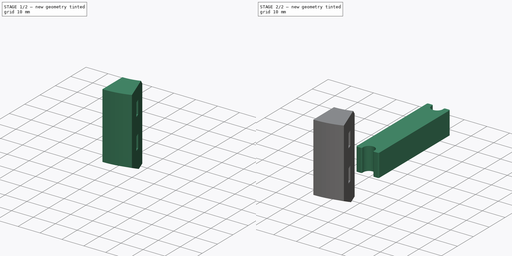
[diagram: build sequence overview — one tinted view per stage of 2, left to right]
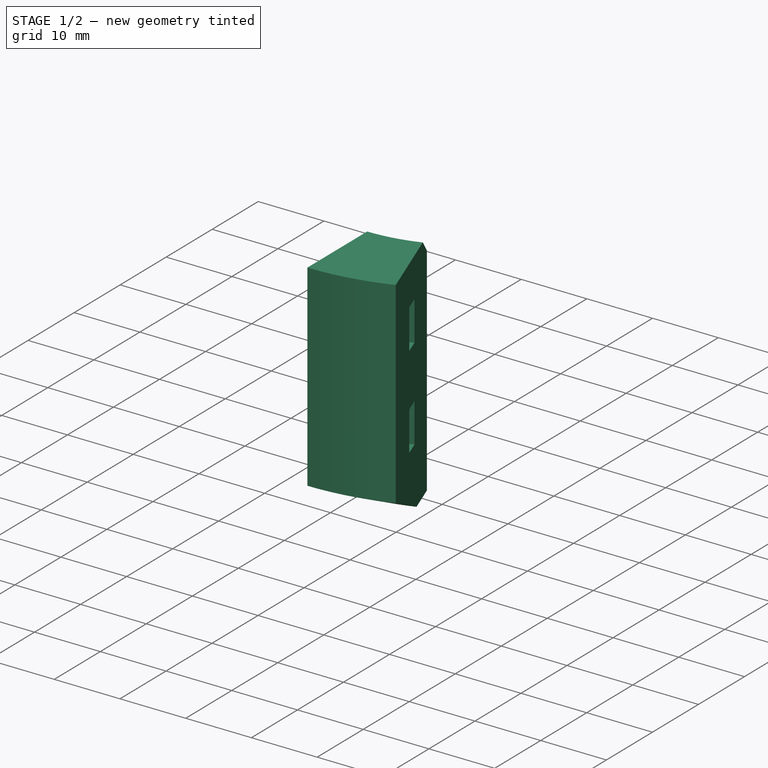
[diagram: stage 1 of 2 — iso view after this stage's code; geometry added in this stage tinted green]
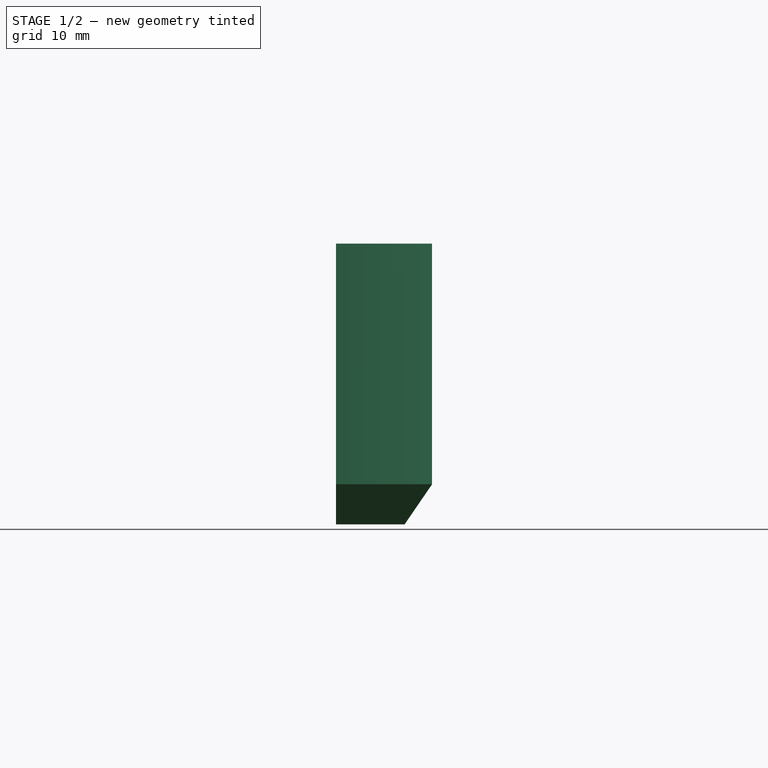
[diagram: stage 1 of 2 — front view after this stage's code; geometry added in this stage tinted green]
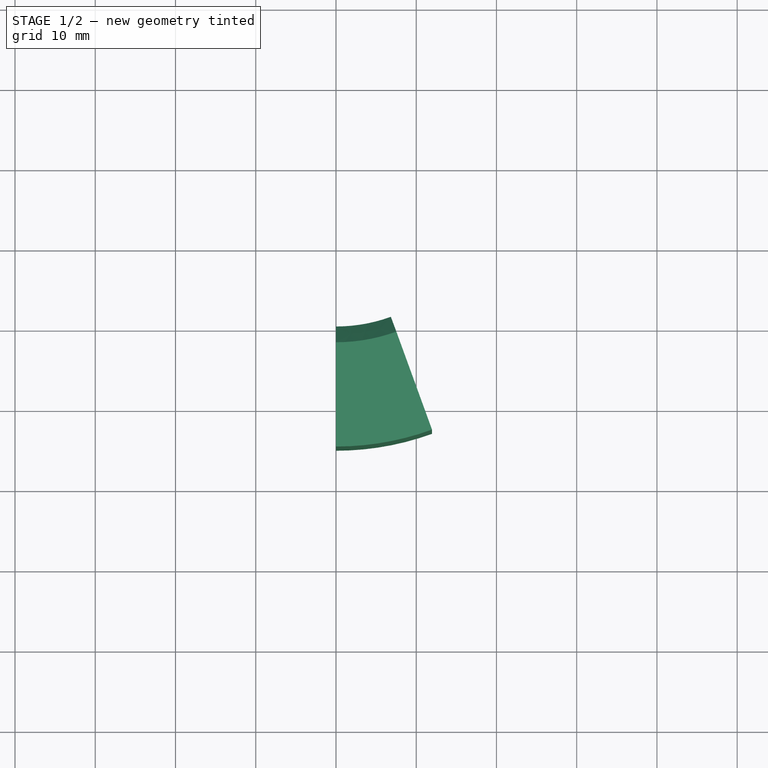
[diagram: stage 1 of 2 — top view after this stage's code; geometry added in this stage tinted green]
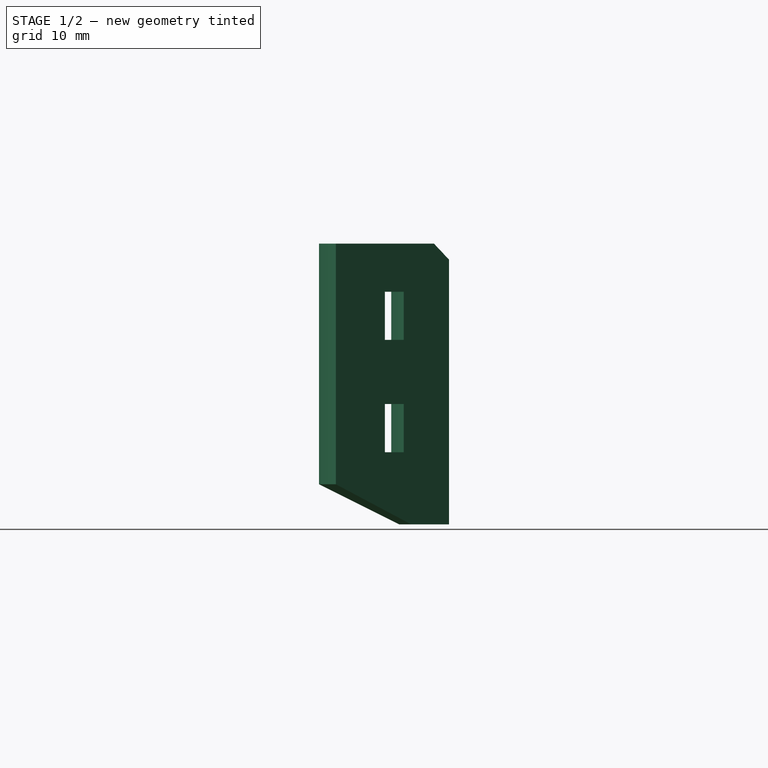
[diagram: stage 1 of 2 — right view after this stage's code; geometry added in this stage tinted green]
FCSTD DOCUMENT  (FreeCAD 0.21R33771 (Git))
Label: IkeaCabinetCarouselFix
License: All rights reserved
LicenseURL: https://en.wikipedia.org/wiki/All_rights_reserved
objects: Sketcher::SketchObject×4, PartDesign::Body×3, PartDesign::Pad×1, PartDesign::Fillet×1, PartDesign::AdditiveLoft×1, PartDesign::Revolution×1, PartDesign::Chamfer×1
note: 17 computed .brp shape members not serialized (recipe doc carries the construction recipe); baked Part::Feature solids carry a one-line shape summary decoded from their .brp

FEATURE [PartDesign::Body] Body
  Group = -> [Sketch,Pad,Fillet]
  Origin = -> Origin
  Tip = -> Fillet
FEATURE [Sketcher::SketchObject] Sketch001
  FullyConstrained = true
  MapMode = 5
  Support = -> [XY_Plane001]
  sketch-geometry (4):
    g0: Circle CenterX=0 CenterY=0 CenterZ=0 NormalX=0 NormalY=0 NormalZ=1 AngleXU=0 Radius=35
    g1: Circle CenterX=0 CenterY=0 CenterZ=0 NormalX=0 NormalY=0 NormalZ=1 AngleXU=0 Radius=20
    g2: GeomPoint X=0 Y=20 Z=0
    g3: GeomPoint X=0 Y=35 Z=0
  constraints (8):
    c: Coincident(g0,g-1)
    c: Coincident(g1,g0)
    c: PointOnObject(g2,g1)
    c: PointOnObject(g3,g0)
    c: PointOnObject(g3,g-2)
    c: PointOnObject(g2,g-2)
    c: Diameter(g0) = 70
    c: DistanceY(g2,g3) = 15
FEATURE [Sketcher::SketchObject] Sketch002
  AttachmentOffset = pos=(0,0,40) rot=(0,0,1;0rad)
  ExternalGeometry = -> [Sketch001]
  FullyConstrained = true
  MapMode = 5
  Placement = pos=(0,0,40) rot=(0,0,1;0rad)
  Support = -> [XY_Plane001]
  sketch-geometry (4):
    g0: Circle CenterX=0 CenterY=0 CenterZ=0 NormalX=0 NormalY=0 NormalZ=1 AngleXU=0 Radius=20
    g1: Circle CenterX=0 CenterY=0 CenterZ=0 NormalX=0 NormalY=0 NormalZ=1 AngleXU=0 Radius=25
    g2: GeomPoint X=0 Y=20 Z=0
    g3: GeomPoint X=0 Y=25 Z=0
  constraints (8):
    c: Coincident(g0,g-1)
    c: Coincident(g1,g0)
    c: PointOnObject(g2,g0)
    c: PointOnObject(g3,g1)
    c: PointOnObject(g3,g-2)
    c: PointOnObject(g2,g-2)
    c: PointOnObject(g2,g-3)
    c: DistanceY(g2,g3) = 5
FEATURE [PartDesign::AdditiveLoft] AdditiveLoft
  Closed = false
  Profile = -> Sketch002
  Ruled = false
  Sections = -> [Sketch001]
FEATURE [PartDesign::Body] Body001
  Group = -> [Sketch001,Sketch002,AdditiveLoft]
  Origin = -> Origin001
  Tip = -> AdditiveLoft
FEATURE [Sketcher::SketchObject] Sketch003
  FullyConstrained = true
  MapMode = 5
  Placement = pos=(0,0,0) rot=(0.57735,0.57735,0.57735;2.0944rad)
  Support = -> [YZ_Plane002]
  expr: Constraints[1] = 70 mm / 2 mm
  sketch-geometry (15):
    g0: LineSegment StartX=-35 StartY=35 StartZ=0 EndX=-20 EndY=35 EndZ=0
    g1: LineSegment StartX=-20 StartY=35 StartZ=0 EndX=-20 EndY=0 EndZ=0
    g2: LineSegment StartX=-20 StartY=0 StartZ=0 EndX=-25 EndY=0 EndZ=0
    g3: LineSegment StartX=-35 StartY=35 StartZ=0 EndX=-35 EndY=5 EndZ=0
    g4: LineSegment StartX=-35 StartY=5 StartZ=0 EndX=-25 EndY=0 EndZ=0
    g5: LineSegment StartX=-28.5 StartY=29 StartZ=0 EndX=-26 EndY=29 EndZ=0
    g6: LineSegment StartX=-26 StartY=29 StartZ=0 EndX=-26 EndY=23 EndZ=0
    g7: LineSegment StartX=-26 StartY=23 StartZ=0 EndX=-28.5 EndY=23 EndZ=0
    g8: LineSegment StartX=-28.5 StartY=23 StartZ=0 EndX=-28.5 EndY=29 EndZ=0
    g9: LineSegment StartX=-28.5 StartY=15 StartZ=0 EndX=-26 EndY=15 EndZ=0
    g10: LineSegment StartX=-26 StartY=15 StartZ=0 EndX=-26 EndY=9 EndZ=0
    g11: LineSegment StartX=-26 StartY=9 StartZ=0 EndX=-28.5 EndY=9 EndZ=0
    g12: LineSegment StartX=-28.5 StartY=9 StartZ=0 EndX=-28.5 EndY=15 EndZ=0
    g13: LineSegment StartX=-26 StartY=23 StartZ=0 EndX=-26 EndY=15 EndZ=0
    g14: LineSegment StartX=-26 StartY=29 StartZ=0 EndX=-26 EndY=35 EndZ=0
  constraints (44):
    c: Horizontal(g0)
    c: DistanceX(g0,g-1) = 35
    c: DistanceX(g0,g0) = 15
    c: DistanceY(g-1,g0) = 35
    c: PointOnObject(g1,g-1)
    c: Vertical(g1)
    c: Coincident(g2,g1)
    c: Horizontal(g2)
    c: Coincident(g1,g0)
    c: DistanceX(g2,g2) = 5
    c: Coincident(g3,g0)
    c: Vertical(g3)
    c: Coincident(g4,g3)
    c: Coincident(g4,g2)
    c: DistanceY(g3,g3) = 30
    c: Coincident(g5,g6)
    c: Coincident(g6,g7)
    c: Coincident(g7,g8)
    c: Coincident(g8,g5)
    c: Horizontal(g5)
    c: Horizontal(g7)
    c: Vertical(g6)
    c: Vertical(g8)
    c: DistanceY(g6,g6) = 6
    c: DistanceX(g5,g5) = 2.5
    c: Coincident(g9,g10)
    c: Coincident(g10,g11)
    c: Coincident(g11,g12)
    c: Coincident(g12,g9)
    c: Horizontal(g9)
    c: Horizontal(g11)
    c: Vertical(g10)
    c: Vertical(g12)
    c: Equal(g9,g7)
    c: Equal(g10,g6)
    c: Coincident(g13,g6)
    c: Coincident(g13,g9)
    c: Vertical(g13)
    c: Coincident(g14,g5)
    c: PointOnObject(g14,g0)
    c: Vertical(g14)
    c: DistanceY(g14,g14) = 6
    c: DistanceY(g13,g13) = 8
    c: DistanceX(g5,g0) = 6
FEATURE [PartDesign::Revolution] Revolution
  Angle = 20
  Axis = (-2e-16,3e-16,1)
  Base = (0,0,0)
  Placement = pos=(0,0,0) rot=(1,1,1;2.0944rad)
  Profile = -> Sketch003
  ReferenceAxis = -> Sketch003 [V_Axis]
FEATURE [PartDesign::Chamfer] Chamfer
  Angle = 45
  Base = -> Revolution [Edge2]
  BaseFeature = -> Revolution
  ChamferType = 0
  FlipDirection = false
  Placement = pos=(0,0,0) rot=(1,1,1;2.0944rad)
  Size = 2
  Size2 = 1
  SupportTransform = false
  UseAllEdges = false
FEATURE [PartDesign::Body] Body002
  Group = -> [Sketch003,Revolution,Chamfer]
  Origin = -> Origin002
  Tip = -> Chamfer
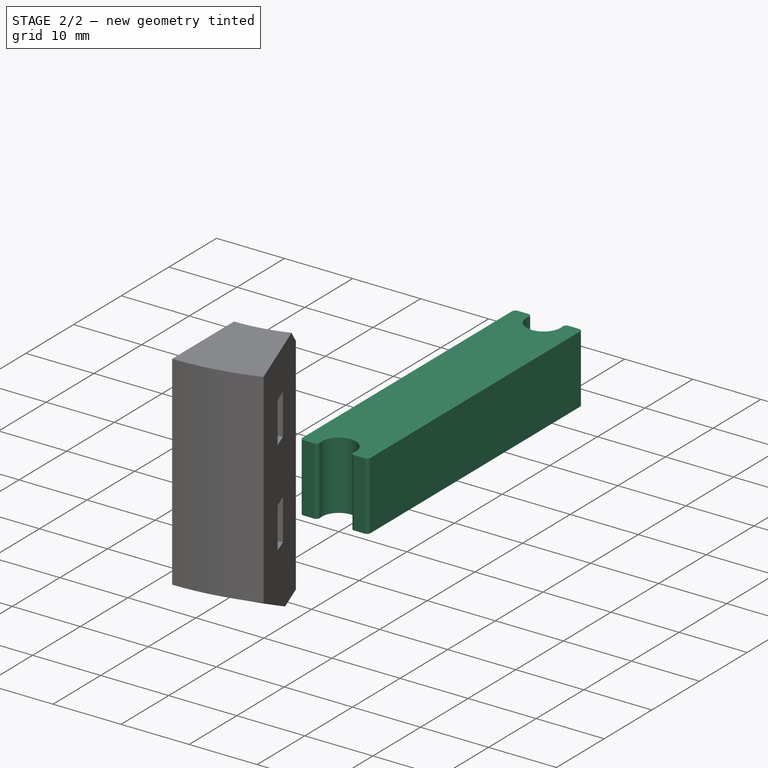
[diagram: stage 2 of 2 — iso view after this stage's code; geometry added in this stage tinted green]
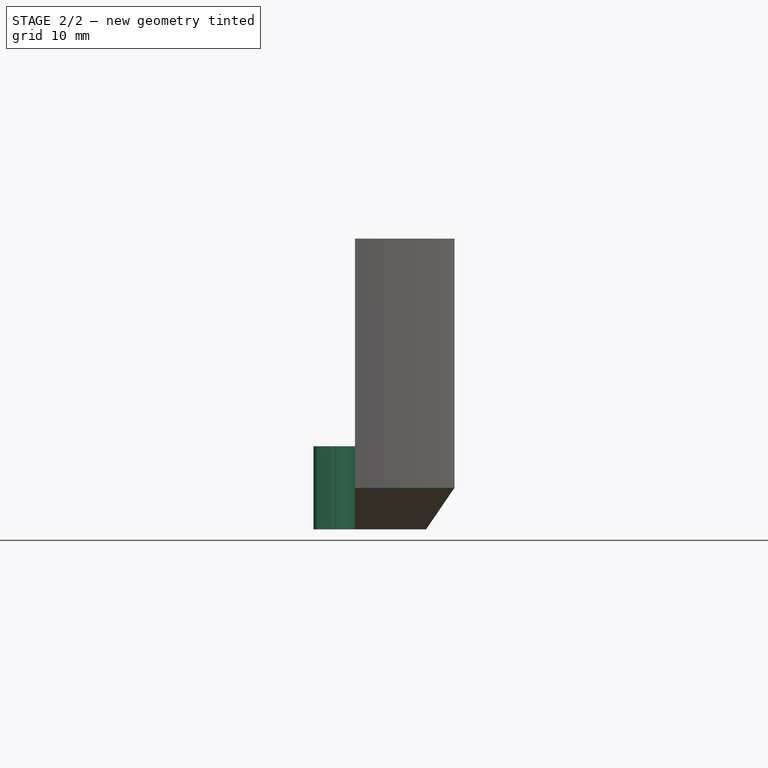
[diagram: stage 2 of 2 — front view after this stage's code; geometry added in this stage tinted green]
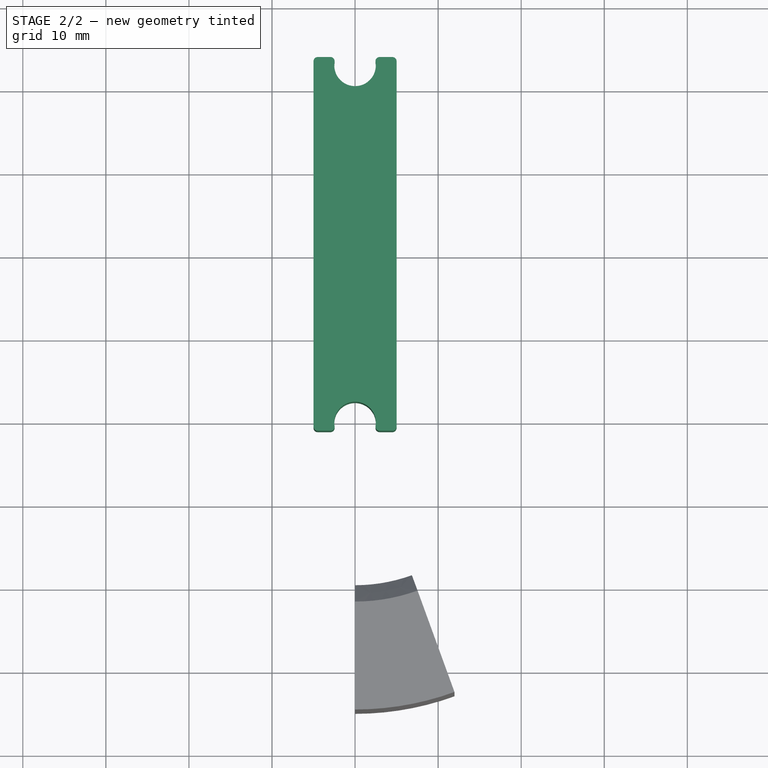
[diagram: stage 2 of 2 — top view after this stage's code; geometry added in this stage tinted green]
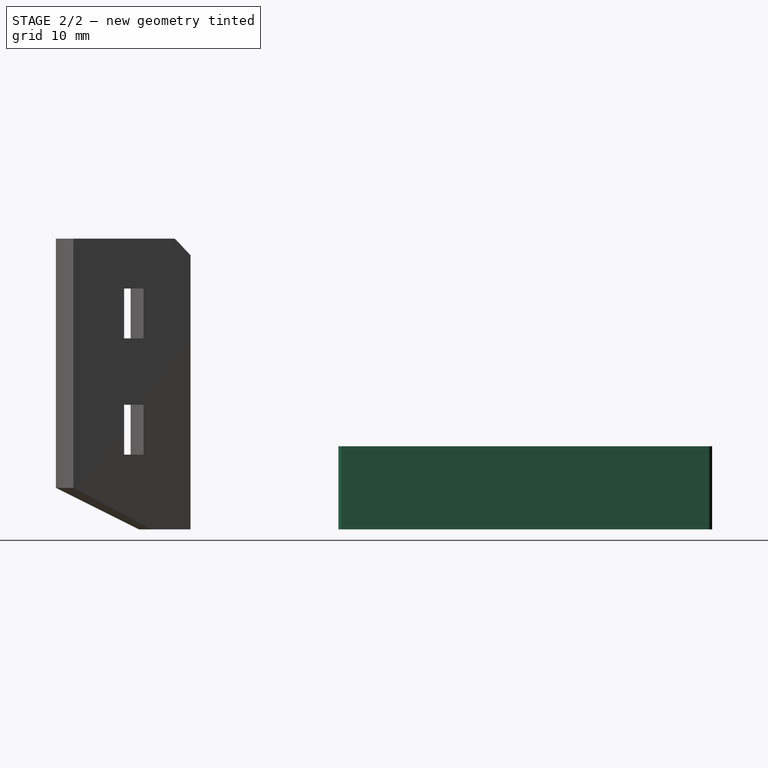
[diagram: stage 2 of 2 — right view after this stage's code; geometry added in this stage tinted green]
FEATURE [Sketcher::SketchObject] Sketch
  FullyConstrained = true
  MapMode = 5
  Support = -> [XY_Plane]
  expr: Constraints[18] = .Constraints.x
  sketch-geometry (15):
    g0: ArcOfCircle CenterX=0 CenterY=0 CenterZ=0 NormalX=0 NormalY=0 NormalZ=1 AngleXU=0 Radius=2.5 StartAngle=5.87167 EndAngle=9.83629
    g1: ArcOfCircle CenterX=0 CenterY=43 CenterZ=0 NormalX=0 NormalY=0 NormalZ=1 AngleXU=0 Radius=2.5 StartAngle=2.73008 EndAngle=6.6947
    g2: GeomPoint X=0 Y=45.5 Z=0
    g3: GeomPoint X=0 Y=-2.5 Z=0
    g4: LineSegment StartX=-5 StartY=44 StartZ=0 EndX=-2.29129 EndY=44 EndZ=0
    g5: LineSegment StartX=5 StartY=44 StartZ=0 EndX=5 EndY=-1 EndZ=0
    g6: LineSegment StartX=-5 StartY=-1 StartZ=0 EndX=-5 EndY=44 EndZ=0
    g7: LineSegment StartX=0 StartY=-1 StartZ=0 EndX=-2.29129 EndY=-1 EndZ=0
    g8: LineSegment StartX=-2.29129 StartY=-1 StartZ=0 EndX=-5 EndY=-1 EndZ=0
    g9: LineSegment StartX=5 StartY=-1 StartZ=0 EndX=2.29129 EndY=-1 EndZ=0
    g10: LineSegment StartX=2.29129 StartY=-1 StartZ=0 EndX=0 EndY=-1 EndZ=0
    g11: LineSegment StartX=2.29129 StartY=44 StartZ=0 EndX=5 EndY=44 EndZ=0
    g12: LineSegment StartX=-2.29129 StartY=44 StartZ=0 EndX=2.29129 EndY=44 EndZ=0
    g13: GeomPoint X=0 Y=40.5 Z=0
    g14: GeomPoint X=0 Y=2.5 Z=0
  constraints (42):
    c: Coincident(g0,g-1)
    c: PointOnObject(g1,g-2)
    c: Equal(g1,g0)
    c: PointOnObject(g2,g1)
    c: PointOnObject(g3,g0)
    c: PointOnObject(g2,g-2)
    c: PointOnObject(g3,g-2)
    c: Diameter(g1) = 5
    c: Coincident(g11,g5)
    c: Coincident(g5,g9)
    c: Coincident(g8,g6)
    c: Coincident(g6,g4)
    c: Horizontal(g4)
    c: Vertical(g5)
    c: DistanceX(g4,g11) = 10
    c: Coincident(g10,g7)
    c: PointOnObject(g10,g-2)
    c: DistanceY(g10,g0) = 1  'x'
    c: DistanceY(g1,g11) = 1
    c: Coincident(g7,g8)
    c: Horizontal(g7)
    c: Horizontal(g8)
    c: PointOnObject(g0,g7)
    c: Coincident(g9,g10)
    c: Horizontal(g9)
    c: Horizontal(g10)
    c: PointOnObject(g0,g9)
    c: PointOnObject(g7,g0)
    c: PointOnObject(g9,g0)
    c: Coincident(g4,g1)
    c: Coincident(g11,g1)
    c: Coincident(g12,g1)
    c: Coincident(g12,g1)
    c: Horizontal(g12)
    c: Horizontal(g11)
    c: Equal(g4,g11)
    c: PointOnObject(g13,g1)
    c: PointOnObject(g14,g0)
    c: PointOnObject(g13,g-2)
    c: PointOnObject(g14,g-2)
    c: DistanceY(g14,g13) = 38
    c: Vertical(g6)
FEATURE [PartDesign::Pad] Pad
  Direction = (0,0,1)
  Length = 10
  Length2 = 10
  Profile = -> Sketch
  ReferenceAxis = -> Sketch [N_Axis]
  Type = 0
FEATURE [PartDesign::Fillet] Fillet
  Base = -> Pad [Edge20,Edge1,Edge2,Edge5,Edge17,Vertex10,Edge14,Edge11,Edge8]
  BaseFeature = -> Pad
  Radius = 0.5
  SupportTransform = false
  UseAllEdges = false
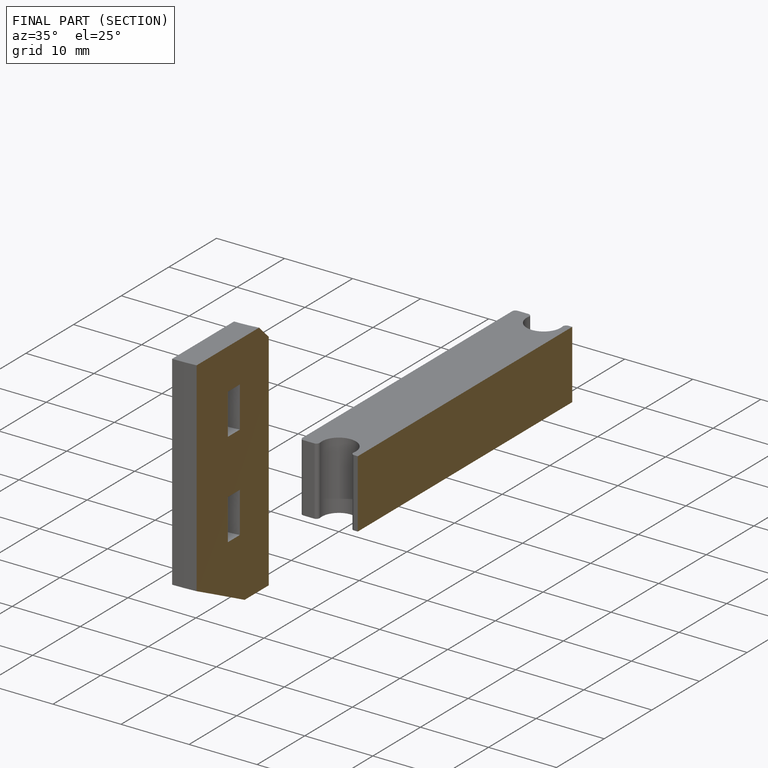
[diagram: finished part — half-section view (interior)]
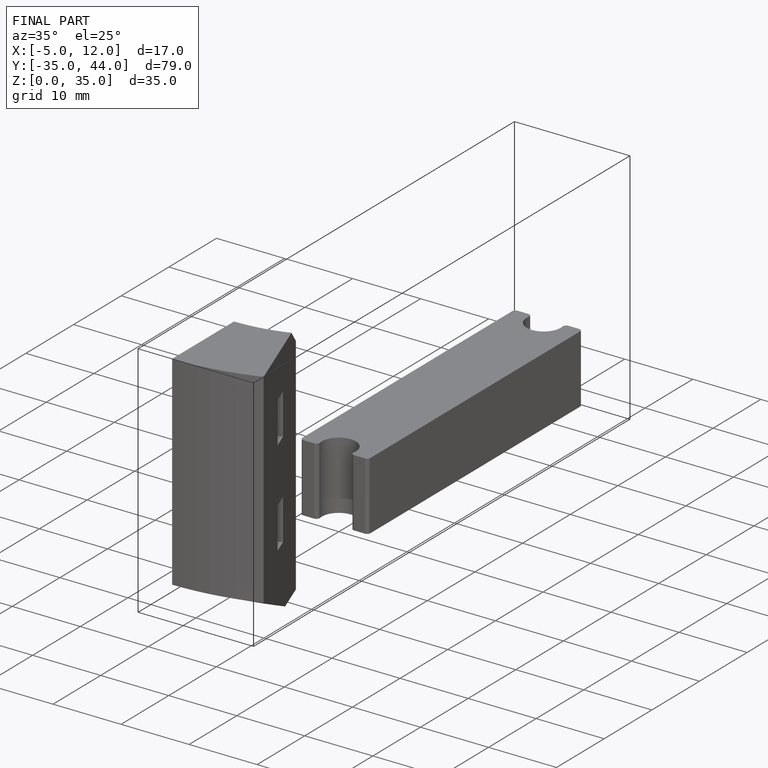
[diagram: finished part — iso view with bounding-box wireframe]
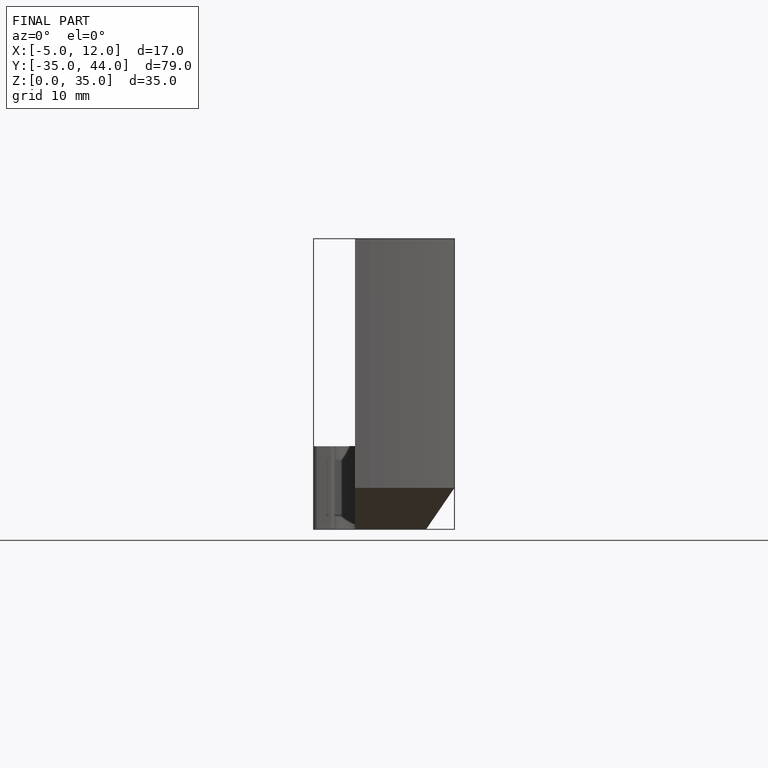
[diagram: finished part — front view with bounding-box wireframe]
